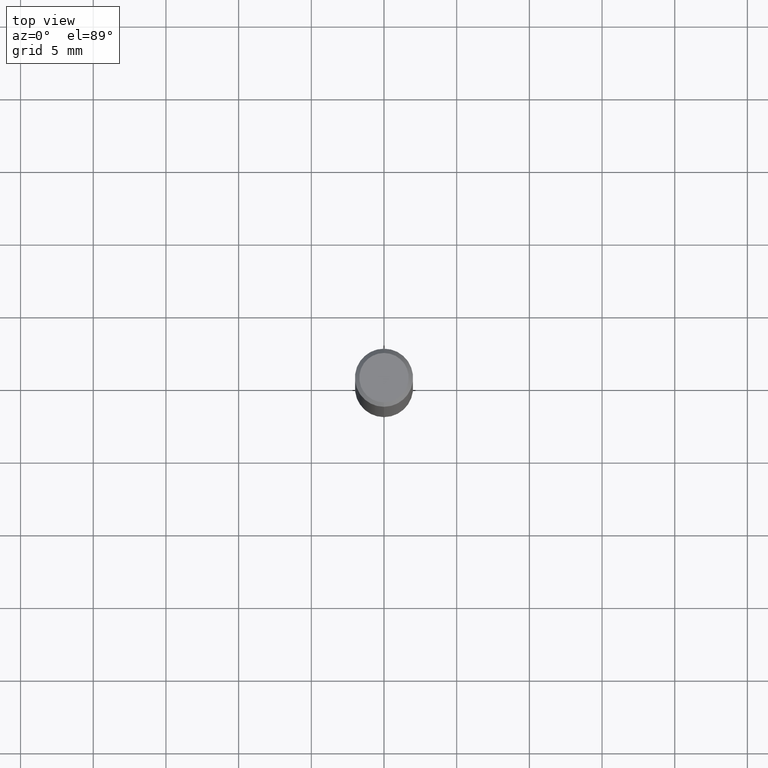
[diagram: clean part render]
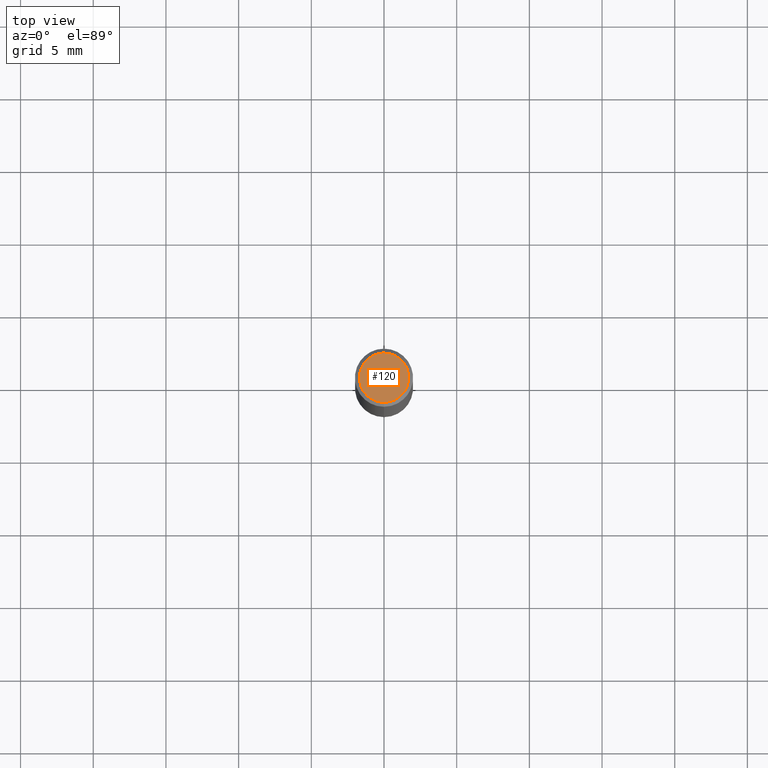
[diagram: same view with one face highlighted and labeled with its STEP entity id]
A machine part, top view. The second image highlights one B-rep face of the part: STEP entity #120.
In plain terms, the highlighted planar face has unit normal (-0, 0, 1).
Its self-contained STEP definition (entity closure, byte-faithful):
#106=EDGE_CURVE('',#140,#198,#261,.T.);
#120=ADVANCED_FACE('',(#276),#277,.T.);
#122=EDGE_CURVE('',#198,#140,#279,.T.);
#140=VERTEX_POINT('',#298);
#198=VERTEX_POINT('',#366);
#261=CIRCLE('',#425,1.7);
#276=FACE_OUTER_BOUND('',#442,.T.);
#277=PLANE('',#443);
#279=CIRCLE('',#446,1.7);
#298=CARTESIAN_POINT('',(0.0,1.7,0.0));
#366=CARTESIAN_POINT('',(2.08183080149804E-016,-1.7,0.0));
#425=AXIS2_PLACEMENT_3D('',#620,#621,#622);
#442=EDGE_LOOP('',(#637,#638));
#443=AXIS2_PLACEMENT_3D('',#639,#640,#641);
#446=AXIS2_PLACEMENT_3D('',#642,#643,#644);
#620=CARTESIAN_POINT('',(0.0,0.0,0.0));
#621=DIRECTION('',(0.0,0.0,-1.0));
#622=DIRECTION('',(0.0,1.0,0.0));
#637=ORIENTED_EDGE('',*,*,#106,.F.);
#638=ORIENTED_EDGE('',*,*,#122,.F.);
#639=CARTESIAN_POINT('',(0.0,0.85,0.0));
#640=DIRECTION('',(-0.0,0.0,1.0));
#641=DIRECTION('',(0.0,-1.0,0.0));
#642=CARTESIAN_POINT('',(0.0,0.0,0.0));
#643=DIRECTION('',(0.0,0.0,-1.0));
#644=DIRECTION('',(0.0,1.0,0.0));